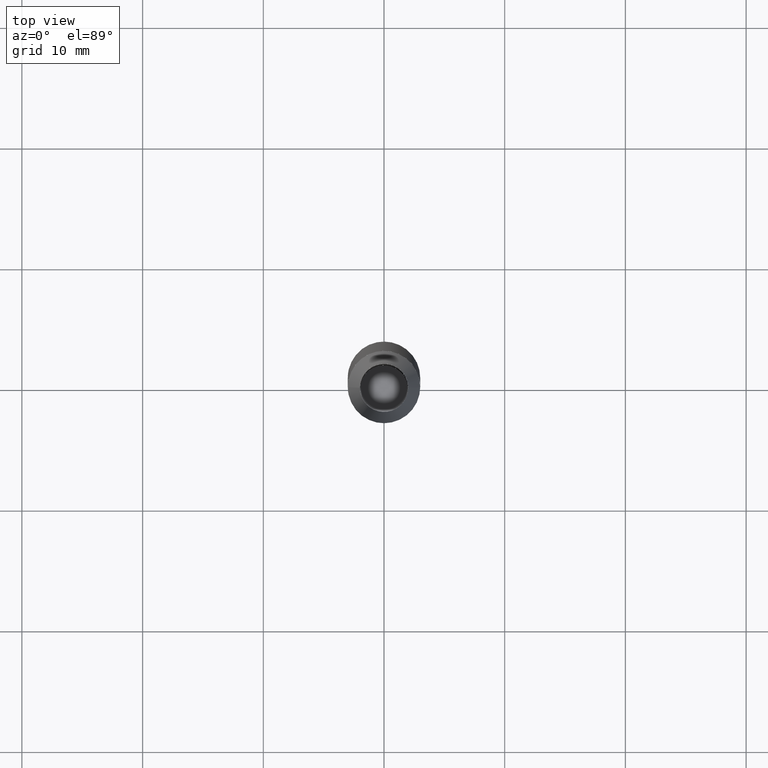
[diagram: clean part render]
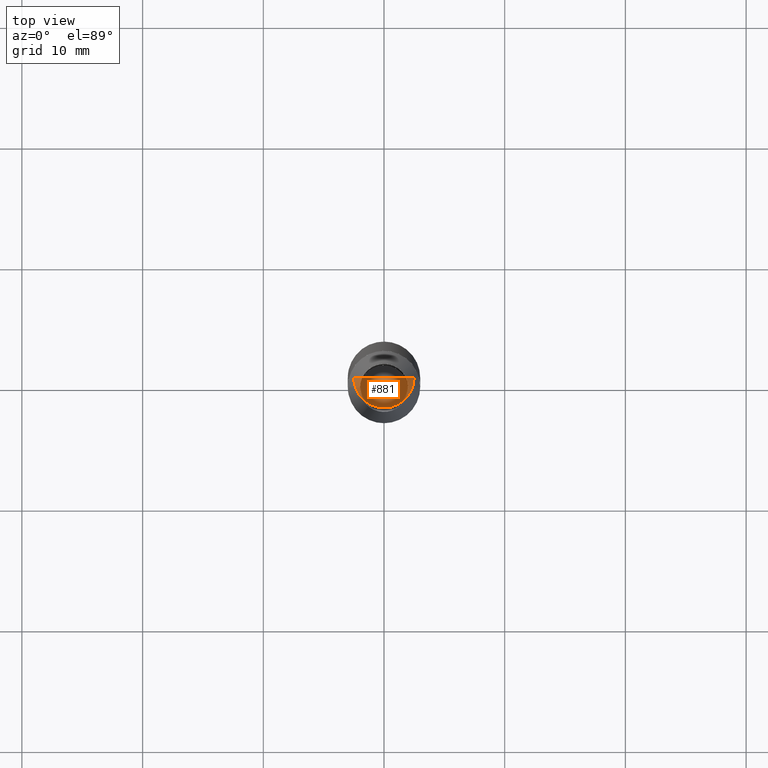
[diagram: same view with one face highlighted and labeled with its STEP entity id]
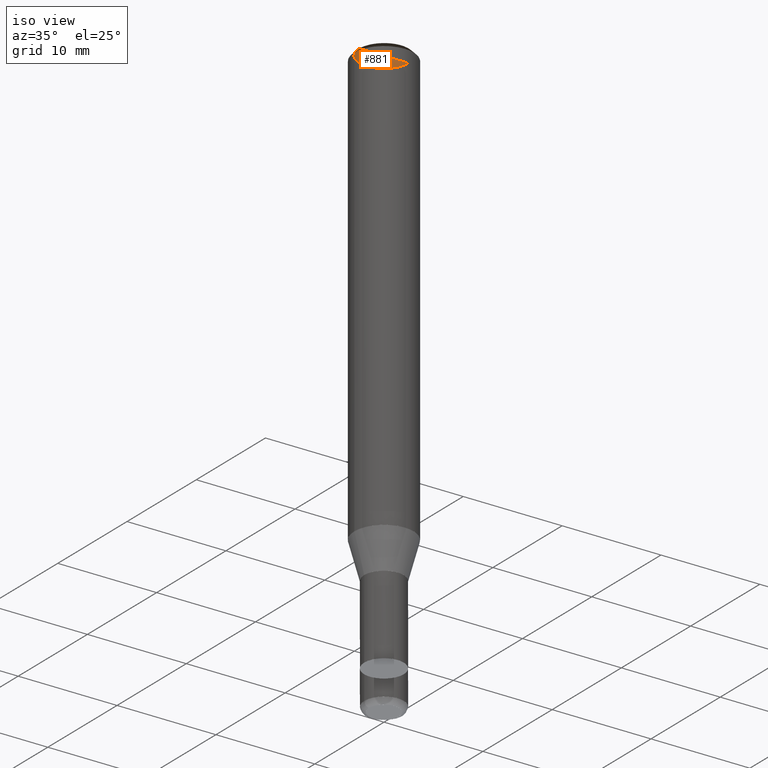
[diagram: same view with one face highlighted and labeled with its STEP entity id]
A machine part, top view. The second image highlights one B-rep face of the part: STEP entity #881.
A second angle (iso view) of the same face is appended — the face is thin or edge-on in the first view.
In plain terms, the highlighted face is a freeform B-spline surface patch.
Its self-contained STEP definition (entity closure, byte-faithful):
#485=CARTESIAN_POINT('',(2.5,0.0,44.267949192431));
#489=CARTESIAN_POINT('',(-2.5,0.0,44.267949192431));
#490=CARTESIAN_POINT('',(0.0,0.0,44.267949192431));
#500=CARTESIAN_POINT('',(-2.5,-2.5,44.267949192431));
#501=CARTESIAN_POINT('',(0.0,-2.5,44.267949192431));
#502=CARTESIAN_POINT('',(2.5,-2.5,44.267949192431));
#866=(
BOUNDED_SURFACE()
B_SPLINE_SURFACE(1,2,(
(#489,#500,#501,#502,#485),
(#490,#490,#490,#490,#490)
), .UNSPECIFIED.,.F.,.F.,.F.)
B_SPLINE_SURFACE_WITH_KNOTS((2,2),(3,2,3),(
0.0,1.0),(
0.0,0.5,1.0), .UNSPECIFIED.)
GEOMETRIC_REPRESENTATION_ITEM()
RATIONAL_B_SPLINE_SURFACE(((1.0,0.707106781187,1.0,0.707106781187,1.0),
(1.0,0.707106781187,1.0,0.707106781187,1.0)
))
REPRESENTATION_ITEM('')
SURFACE()
);
#867=(
BOUNDED_CURVE()
B_SPLINE_CURVE(1,(#490,#485),.UNSPECIFIED.,.F.,.F.)
B_SPLINE_CURVE_WITH_KNOTS((2,2),
(0.0,1.0),.UNSPECIFIED.)
CURVE()
GEOMETRIC_REPRESENTATION_ITEM()
RATIONAL_B_SPLINE_CURVE((1.0,1.0))
REPRESENTATION_ITEM('')
);
#868=(
BOUNDED_CURVE()
B_SPLINE_CURVE(2,(#485,#502,#501,#500,#489),.UNSPECIFIED.,.F.,.F.)
B_SPLINE_CURVE_WITH_KNOTS((3,2,3),
(0.0,0.5,1.0),.UNSPECIFIED.)
CURVE()
GEOMETRIC_REPRESENTATION_ITEM()
RATIONAL_B_SPLINE_CURVE((1.0,0.707106781187,1.0,0.707106781187,1.0))
REPRESENTATION_ITEM('')
);
#869=(
BOUNDED_CURVE()
B_SPLINE_CURVE(1,(#489,#490),.UNSPECIFIED.,.F.,.F.)
B_SPLINE_CURVE_WITH_KNOTS((2,2),
(0.0,1.0),.UNSPECIFIED.)
CURVE()
GEOMETRIC_REPRESENTATION_ITEM()
RATIONAL_B_SPLINE_CURVE((1.0,1.0))
REPRESENTATION_ITEM('')
);
#870=VERTEX_POINT('',#485);
#871=VERTEX_POINT('',#489);
#872=VERTEX_POINT('',#490);
#873=EDGE_CURVE('',#872,#870,#867,.T.);
#874=EDGE_CURVE('',#870,#871,#868,.T.);
#875=EDGE_CURVE('',#871,#872,#869,.T.);
#876=ORIENTED_EDGE('',*,*,#873,.T.);
#877=ORIENTED_EDGE('',*,*,#874,.T.);
#878=ORIENTED_EDGE('',*,*,#875,.T.);
#879=EDGE_LOOP('',(#876,#877,#878));
#880=FACE_OUTER_BOUND('',#879,.T.);
#881=ADVANCED_FACE('',(#880),#866,.T.);